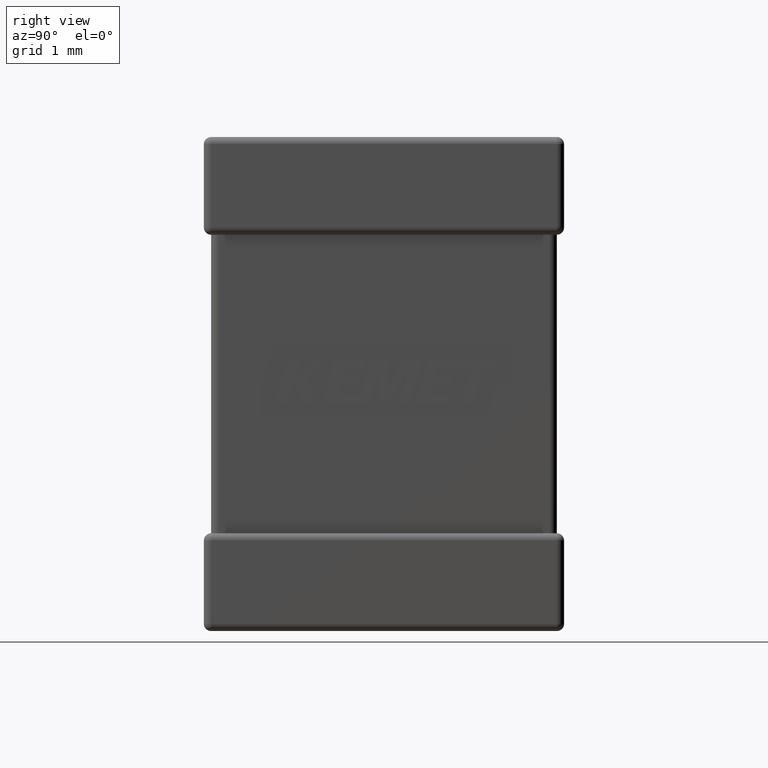
[diagram: clean part render]
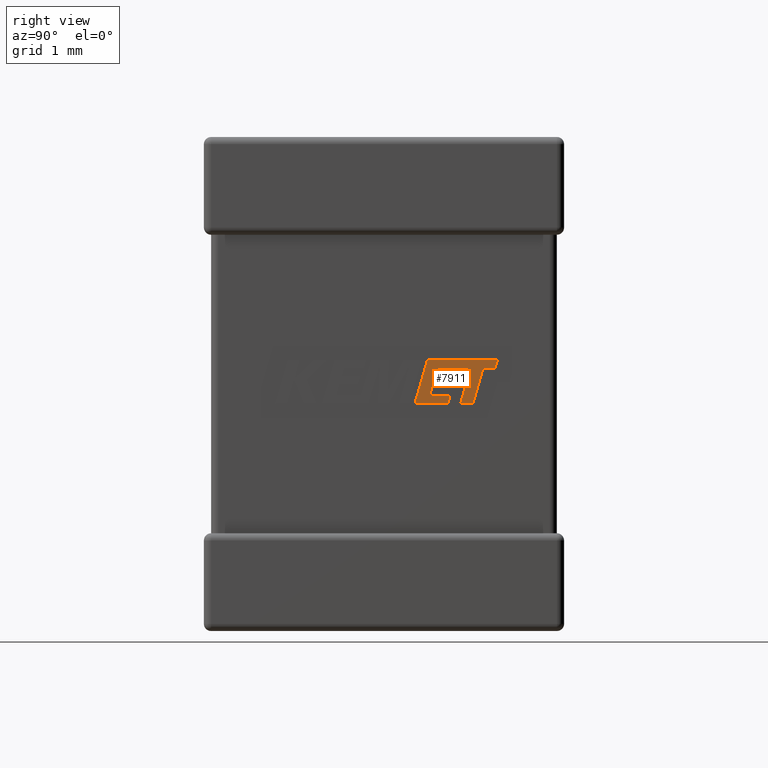
[diagram: same view with one face highlighted and labeled with its STEP entity id]
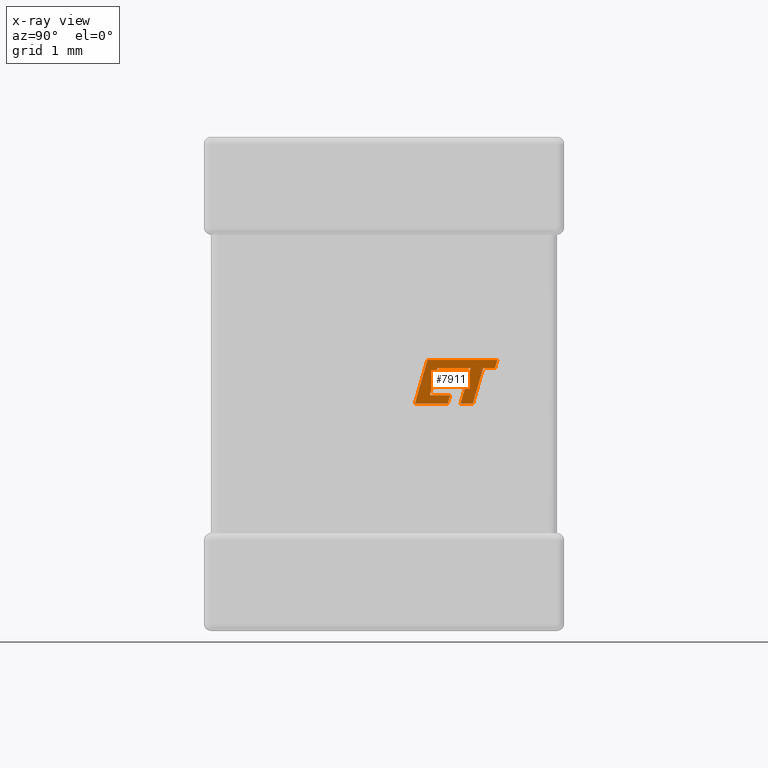
[diagram: x-ray of the same camera — body ghosted, the highlighted face saturated]
A machine part, right view. The second image highlights one B-rep face of the part: STEP entity #7911.
The next image is the same camera in x-ray: the body ghosted, the highlighted face saturated — about 0% of this face is hidden behind the body in this view.
In plain terms, the highlighted planar face has unit normal (1, 0, -0).
Its self-contained STEP definition (entity closure, byte-faithful):
#13 = EDGE_CURVE ( 'NONE', #6983, #1327, #1452, .T. ) ;
#20 = VECTOR ( 'NONE', #5852, 999.9999999999998863 ) ;
#106 = EDGE_LOOP ( 'NONE', ( #6951, #6954, #3345, #8711, #7605, #2259, #4075, #1929, #3058, #7897, #1248, #7421, #7837, #8112, #8210, #5773, #2256 ) ) ;
#124 = VECTOR ( 'NONE', #3911, 1000.000000000000000 ) ;
#179 = VERTEX_POINT ( 'NONE', #556 ) ;
#185 = VECTOR ( 'NONE', #3524, 1000.000000000000227 ) ;
#331 = LINE ( 'NONE', #4517, #8433 ) ;
#344 = LINE ( 'NONE', #8509, #2692 ) ;
#347 = VERTEX_POINT ( 'NONE', #4616 ) ;
#375 = LINE ( 'NONE', #6361, #6938 ) ;
#468 = LINE ( 'NONE', #8506, #2456 ) ;
#556 = CARTESIAN_POINT ( 'NONE',  ( 3.830993763156421927, 2.193884879603795302, -2.509434405143021074 ) ) ;
#604 = LINE ( 'NONE', #4049, #124 ) ;
#692 = CARTESIAN_POINT ( 'NONE',  ( 3.830993763156421927, 2.246252384780270450, -2.325964043578410134 ) ) ;
#803 = CARTESIAN_POINT ( 'NONE',  ( 3.830993763156421483, 2.463189132710256413, -2.247759087473111261 ) ) ;
#859 = DIRECTION ( 'NONE',  ( 0.000000000000000000, 0.2762437428917289828, 0.9610876102172830615 ) ) ;
#861 = VERTEX_POINT ( 'NONE', #4234 ) ;
#938 = VERTEX_POINT ( 'NONE', #8301 ) ;
#1037 = DIRECTION ( 'NONE',  ( 0.000000000000000000, 0.2762033010288861279, 0.9610992334305269447 ) ) ;
#1056 = DIRECTION ( 'NONE',  ( -1.117605228147943233E-15, 0.9999960426590096541, -0.002813301675998168723 ) ) ;
#1109 = CARTESIAN_POINT ( 'NONE',  ( 3.830993763156421483, 2.712485131589005949, -2.248357713018886983 ) ) ;
#1248 = ORIENTED_EDGE ( 'NONE', *, *, #13, .T. ) ;
#1327 = VERTEX_POINT ( 'NONE', #1603 ) ;
#1423 = LINE ( 'NONE', #2792, #8540 ) ;
#1443 = CARTESIAN_POINT ( 'NONE',  ( 3.830993763156421483, 2.427948754945754128, -2.325964043578410134 ) ) ;
#1452 = LINE ( 'NONE', #5536, #2047 ) ;
#1459 = LINE ( 'NONE', #1496, #185 ) ;
#1474 = EDGE_CURVE ( 'NONE', #8829, #2680, #3227, .T. ) ;
#1491 = DIRECTION ( 'NONE',  ( 0.000000000000000000, 0.2729786930695368152, 0.9620200793798679983 ) ) ;
#1496 = CARTESIAN_POINT ( 'NONE',  ( 3.830993763156421927, 2.172223646793191243, -2.166608636213903871 ) ) ;
#1603 = CARTESIAN_POINT ( 'NONE',  ( 3.830993763156421483, 2.393187277617004671, -2.509434405143021518 ) ) ;
#1920 = VERTEX_POINT ( 'NONE', #8441 ) ;
#1929 = ORIENTED_EDGE ( 'NONE', *, *, #2891, .T. ) ;
#2039 = LINE ( 'NONE', #3496, #5023 ) ;
#2047 = VECTOR ( 'NONE', #1491, 1000.000000000000227 ) ;
#2256 = ORIENTED_EDGE ( 'NONE', *, *, #4323, .T. ) ;
#2259 = ORIENTED_EDGE ( 'NONE', *, *, #1474, .T. ) ;
#2410 = DIRECTION ( 'NONE',  ( 0.000000000000000000, 1.000000000000000000, 0.000000000000000000 ) ) ;
#2414 = FACE_OUTER_BOUND ( 'NONE', #106, .T. ) ;
#2456 = VECTOR ( 'NONE', #4443, 1000.000000000000000 ) ;
#2461 = DIRECTION ( 'NONE',  ( -1.116718181954335507E-15, 1.000000000000000000, 0.000000000000000000 ) ) ;
#2499 = DIRECTION ( 'NONE',  ( 1.000000000000000000, 1.116718181954335507E-15, -3.168751633888848856E-16 ) ) ;
#2562 = CARTESIAN_POINT ( 'NONE',  ( 3.830993763156421927, 2.269167513157796190, -2.247213243965556106 ) ) ;
#2631 = DIRECTION ( 'NONE',  ( 0.000000000000000000, 0.9999999968487351953, -7.938847109663241339E-05 ) ) ;
#2656 = EDGE_CURVE ( 'NONE', #179, #861, #1423, .T. ) ;
#2680 = VERTEX_POINT ( 'NONE', #7595 ) ;
#2692 = VECTOR ( 'NONE', #3912, 1000.000000000000000 ) ;
#2792 = CARTESIAN_POINT ( 'NONE',  ( 3.830993763156421927, 2.193884879603795302, -2.509434405143021074 ) ) ;
#2891 = EDGE_CURVE ( 'NONE', #5174, #6895, #375, .T. ) ;
#3035 = CARTESIAN_POINT ( 'NONE',  ( 3.830993763156421483, 2.614287369657751547, -2.590000391891017273 ) ) ;
#3045 = DIRECTION ( 'NONE',  ( 0.000000000000000000, -0.2763173343569712004, -0.9610664548998979484 ) ) ;
#3058 = ORIENTED_EDGE ( 'NONE', *, *, #5846, .T. ) ;
#3084 = PLANE ( 'NONE',  #5288 ) ;
#3227 = LINE ( 'NONE', #6571, #5845 ) ;
#3234 = CARTESIAN_POINT ( 'NONE',  ( 3.830993763156424592, -0.003451786621834612104, -0.1249305846191149372 ) ) ;
#3345 = ORIENTED_EDGE ( 'NONE', *, *, #3648, .T. ) ;
#3397 = EDGE_CURVE ( 'NONE', #1920, #6983, #8486, .T. ) ;
#3449 = CARTESIAN_POINT ( 'NONE',  ( 3.830993763156421483, 2.493679127119788674, -2.590000391891017273 ) ) ;
#3496 = CARTESIAN_POINT ( 'NONE',  ( 3.830993763156421483, 2.614287369657751547, -2.590000391891017273 ) ) ;
#3524 = DIRECTION ( 'NONE',  ( 0.000000000000000000, -0.2764273280489740192, -0.9610348236706642844 ) ) ;
#3543 = VECTOR ( 'NONE', #5255, 1000.000000000000000 ) ;
#3602 = LINE ( 'NONE', #6326, #7237 ) ;
#3648 = EDGE_CURVE ( 'NONE', #347, #8750, #3602, .T. ) ;
#3704 = VECTOR ( 'NONE', #1037, 1000.000000000000000 ) ;
#3720 = DIRECTION ( 'NONE',  ( 0.000000000000000000, 0.2746918797667103895, 0.9615323037684335716 ) ) ;
#3825 = EDGE_CURVE ( 'NONE', #8077, #6102, #604, .T. ) ;
#3911 = DIRECTION ( 'NONE',  ( 1.193421939577599123E-15, -1.000000000000000000, 0.000000000000000000 ) ) ;
#3912 = DIRECTION ( 'NONE',  ( -1.193591077737113383E-15, 1.000000000000000000, 0.000000000000000000 ) ) ;
#4049 = CARTESIAN_POINT ( 'NONE',  ( 3.830993763156421483, 2.427948754945754128, -2.325964043578410134 ) ) ;
#4075 = ORIENTED_EDGE ( 'NONE', *, *, #8233, .T. ) ;
#4204 = LINE ( 'NONE', #803, #8455 ) ;
#4234 = CARTESIAN_POINT ( 'NONE',  ( 3.830993763156421927, 2.223921720913036193, -2.404220494354396997 ) ) ;
#4323 = EDGE_CURVE ( 'NONE', #6102, #6313, #6852, .T. ) ;
#4443 = DIRECTION ( 'NONE',  ( 1.087997117238544926E-15, -1.000000000000000000, 0.000000000000000000 ) ) ;
#4455 = VECTOR ( 'NONE', #2410, 1000.000000000000000 ) ;
#4517 = CARTESIAN_POINT ( 'NONE',  ( 3.830993763156421483, 2.405592343743260919, -2.404220494354397442 ) ) ;
#4602 = VERTEX_POINT ( 'NONE', #7835 ) ;
#4616 = CARTESIAN_POINT ( 'NONE',  ( 3.830993763156421483, 2.591905211120030916, -2.248357713017834936 ) ) ;
#4951 = CARTESIAN_POINT ( 'NONE',  ( 3.830993763156421483, 2.370326218643575622, -2.590000391891017273 ) ) ;
#5023 = VECTOR ( 'NONE', #859, 1000.000000000000227 ) ;
#5153 = LINE ( 'NONE', #8550, #4455 ) ;
#5174 = VERTEX_POINT ( 'NONE', #6312 ) ;
#5239 = EDGE_CURVE ( 'NONE', #8272, #8829, #2039, .T. ) ;
#5255 = DIRECTION ( 'NONE',  ( -6.778701936095950583E-16, 1.000000000000000000, 0.000000000000000000 ) ) ;
#5288 = AXIS2_PLACEMENT_3D ( 'NONE', #3234, #2499, #2461 ) ;
#5536 = CARTESIAN_POINT ( 'NONE',  ( 3.830993763156421483, 2.370326218643575622, -2.590000391891017273 ) ) ;
#5639 = DIRECTION ( 'NONE',  ( 0.000000000000000000, 0.9999891854650021505, -0.004650693823659264071 ) ) ;
#5773 = ORIENTED_EDGE ( 'NONE', *, *, #3825, .T. ) ;
#5811 = LINE ( 'NONE', #7953, #3704 ) ;
#5843 = VECTOR ( 'NONE', #1056, 1000.000000000000114 ) ;
#5845 = VECTOR ( 'NONE', #2631, 1000.000000000000114 ) ;
#5846 = EDGE_CURVE ( 'NONE', #6895, #1920, #1459, .T. ) ;
#5852 = DIRECTION ( 'NONE',  ( 0.000000000000000000, 0.2793947940814648923, 0.9601763114346114625 ) ) ;
#5918 = EDGE_CURVE ( 'NONE', #938, #347, #4204, .T. ) ;
#6102 = VERTEX_POINT ( 'NONE', #692 ) ;
#6282 = EDGE_CURVE ( 'NONE', #8750, #8272, #5153, .T. ) ;
#6312 = CARTESIAN_POINT ( 'NONE',  ( 3.830993763156421483, 2.851901802871453562, -2.166608636213904315 ) ) ;
#6313 = VERTEX_POINT ( 'NONE', #8813 ) ;
#6326 = CARTESIAN_POINT ( 'NONE',  ( 3.830993763156421483, 2.591905211120030916, -2.248357713017834936 ) ) ;
#6361 = CARTESIAN_POINT ( 'NONE',  ( 3.830993763156421483, 2.851901802871453562, -2.166608636213904315 ) ) ;
#6483 = DIRECTION ( 'NONE',  ( 0.000000000000000000, -1.000000000000000000, 1.186963100278258159E-15 ) ) ;
#6571 = CARTESIAN_POINT ( 'NONE',  ( 3.830993763156421483, 2.712485131589005949, -2.248357713018886983 ) ) ;
#6643 = CARTESIAN_POINT ( 'NONE',  ( 3.830993763156421927, 2.246252384780270450, -2.325964043578410134 ) ) ;
#6852 = LINE ( 'NONE', #6643, #20 ) ;
#6895 = VERTEX_POINT ( 'NONE', #8472 ) ;
#6938 = VECTOR ( 'NONE', #6483, 1000.000000000000000 ) ;
#6951 = ORIENTED_EDGE ( 'NONE', *, *, #7598, .T. ) ;
#6954 = ORIENTED_EDGE ( 'NONE', *, *, #5918, .T. ) ;
#6983 = VERTEX_POINT ( 'NONE', #4951 ) ;
#7087 = EDGE_CURVE ( 'NONE', #1327, #179, #468, .T. ) ;
#7166 = LINE ( 'NONE', #2562, #5843 ) ;
#7206 = CARTESIAN_POINT ( 'NONE',  ( 3.830993763156421927, 2.050441325427596162, -2.590000391891017273 ) ) ;
#7237 = VECTOR ( 'NONE', #3045, 1000.000000000000227 ) ;
#7421 = ORIENTED_EDGE ( 'NONE', *, *, #7087, .T. ) ;
#7595 = CARTESIAN_POINT ( 'NONE',  ( 3.830993763156421483, 2.828405887028420995, -2.248366915790457998 ) ) ;
#7598 = EDGE_CURVE ( 'NONE', #6313, #938, #7166, .T. ) ;
#7605 = ORIENTED_EDGE ( 'NONE', *, *, #5239, .T. ) ;
#7835 = CARTESIAN_POINT ( 'NONE',  ( 3.830993763156421483, 2.405592343743260919, -2.404220494354397442 ) ) ;
#7837 = ORIENTED_EDGE ( 'NONE', *, *, #2656, .T. ) ;
#7897 = ORIENTED_EDGE ( 'NONE', *, *, #3397, .T. ) ;
#7911 = ADVANCED_FACE ( 'NONE', ( #2414 ), #3084, .T. ) ;
#7953 = CARTESIAN_POINT ( 'NONE',  ( 3.830993763156421483, 2.828405887028420995, -2.248366915790457998 ) ) ;
#7957 = EDGE_CURVE ( 'NONE', #861, #4602, #344, .T. ) ;
#8077 = VERTEX_POINT ( 'NONE', #1443 ) ;
#8112 = ORIENTED_EDGE ( 'NONE', *, *, #7957, .T. ) ;
#8210 = ORIENTED_EDGE ( 'NONE', *, *, #8250, .T. ) ;
#8233 = EDGE_CURVE ( 'NONE', #2680, #5174, #5811, .T. ) ;
#8250 = EDGE_CURVE ( 'NONE', #4602, #8077, #331, .T. ) ;
#8272 = VERTEX_POINT ( 'NONE', #3035 ) ;
#8301 = CARTESIAN_POINT ( 'NONE',  ( 3.830993763156421483, 2.463189132710256413, -2.247759087473111261 ) ) ;
#8317 = DIRECTION ( 'NONE',  ( 0.000000000000000000, 0.2745159998572361260, 0.9615825319869231169 ) ) ;
#8433 = VECTOR ( 'NONE', #3720, 1000.000000000000227 ) ;
#8441 = CARTESIAN_POINT ( 'NONE',  ( 3.830993763156421927, 2.050441325427596162, -2.590000391891017273 ) ) ;
#8455 = VECTOR ( 'NONE', #5639, 1000.000000000000227 ) ;
#8472 = CARTESIAN_POINT ( 'NONE',  ( 3.830993763156421927, 2.172223646793191243, -2.166608636213903871 ) ) ;
#8486 = LINE ( 'NONE', #7206, #3543 ) ;
#8506 = CARTESIAN_POINT ( 'NONE',  ( 3.830993763156421483, 2.393187277617004671, -2.509434405143021518 ) ) ;
#8509 = CARTESIAN_POINT ( 'NONE',  ( 3.830993763156421927, 2.223921720913036193, -2.404220494354396997 ) ) ;
#8540 = VECTOR ( 'NONE', #8317, 1000.000000000000114 ) ;
#8550 = CARTESIAN_POINT ( 'NONE',  ( 3.830993763156421483, 2.493679127119788674, -2.590000391891017273 ) ) ;
#8711 = ORIENTED_EDGE ( 'NONE', *, *, #6282, .T. ) ;
#8750 = VERTEX_POINT ( 'NONE', #3449 ) ;
#8813 = CARTESIAN_POINT ( 'NONE',  ( 3.830993763156421927, 2.269167513157796190, -2.247213243965556106 ) ) ;
#8829 = VERTEX_POINT ( 'NONE', #1109 ) ;